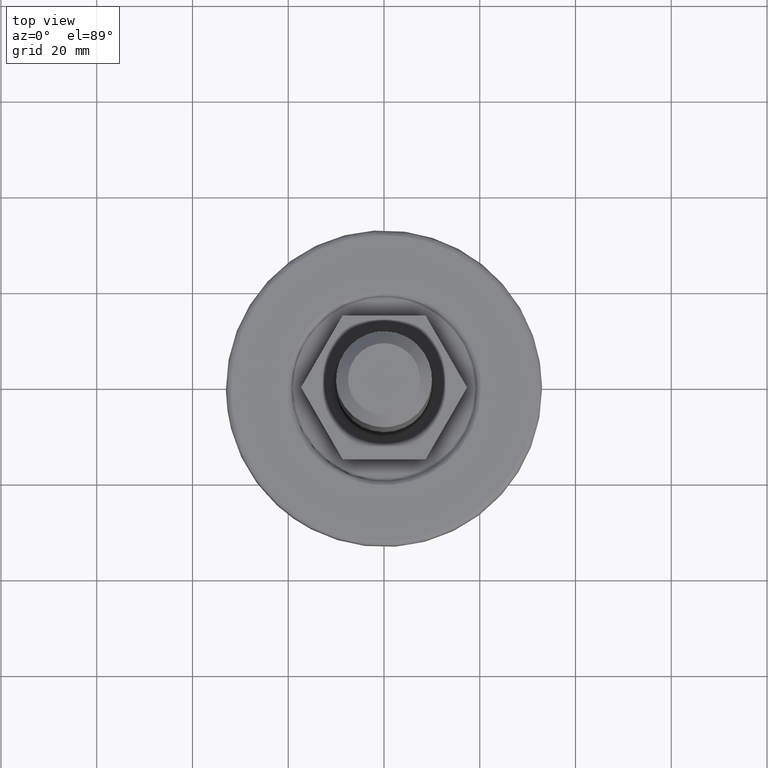
[diagram: clean part render]
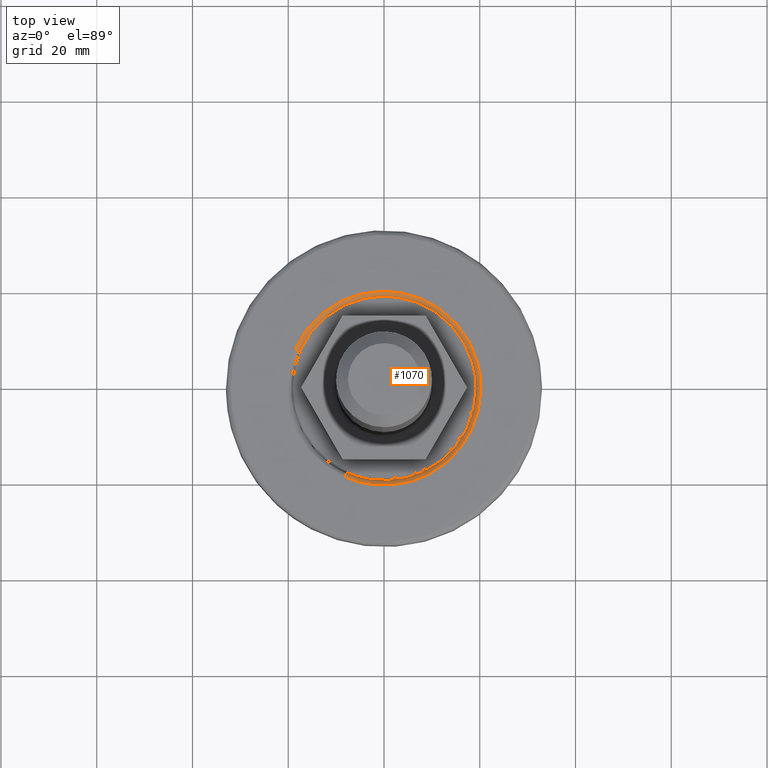
[diagram: same view with one face highlighted and labeled with its STEP entity id]
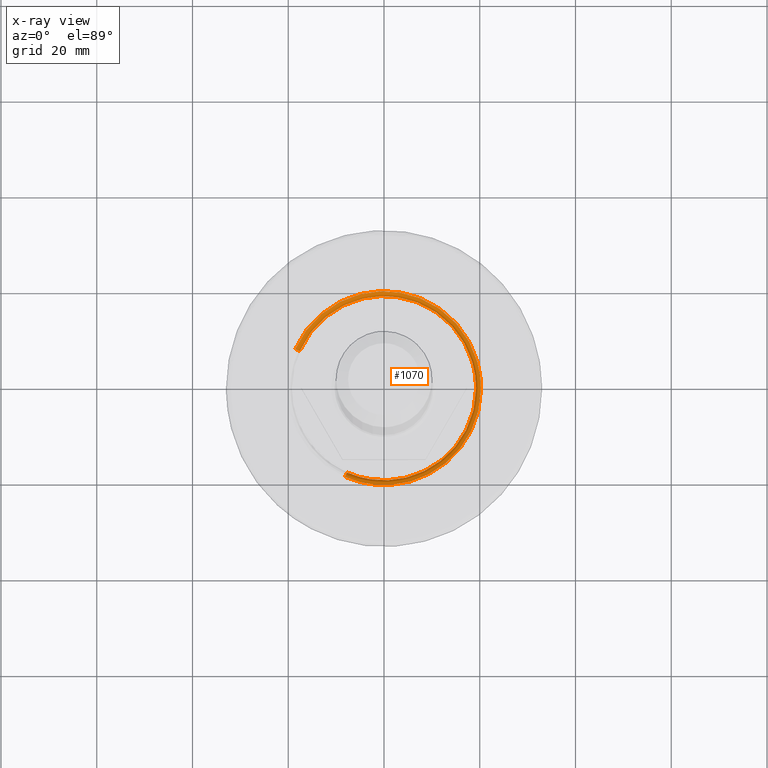
[diagram: x-ray of the same camera — body ghosted, the highlighted face saturated]
A machine part, top view. The second image highlights one B-rep face of the part: STEP entity #1070.
The next image is the same camera in x-ray: the body ghosted, the highlighted face saturated — about 0% of this face is hidden behind the body in this view.
In plain terms, the highlighted face is a freeform B-spline surface patch.
Its self-contained STEP definition (entity closure, byte-faithful):
#519=CARTESIAN_POINT('',(14.262485081460540,12.928419056524501,11.000000000000041));
#520=VERTEX_POINT('',#519);
#521=CARTESIAN_POINT('',(19.250000000000000,0.0,11.0));
#522=VERTEX_POINT('',#521);
#523=CARTESIAN_POINT('',(14.262485081460536,12.928419056524501,11.000000000000039));
#524=CARTESIAN_POINT('',(19.250000000000007,7.426249239146315,11.0));
#525=CARTESIAN_POINT('',(19.250000000000000,0.0,11.0));
#533=(BOUNDED_CURVE()B_SPLINE_CURVE(2,(#523,#524,#525),.UNSPECIFIED.,.F.,.U.)B_SPLINE_CURVE_WITH_KNOTS((3,3),(0.382398578021542,0.500000000000000),.UNSPECIFIED.)CURVE()GEOMETRIC_REPRESENTATION_ITEM()RATIONAL_B_SPLINE_CURVE((0.854066436008772,0.862221363918762,1.0))REPRESENTATION_ITEM(''));
#534=EDGE_CURVE('',#520,#522,#533,.T.);
#592=CARTESIAN_POINT('',(2.845321252948537,19.038556850964799,11.000000000001741));
#593=VERTEX_POINT('',#592);
#599=CARTESIAN_POINT('',(-17.618392572948419,7.755948887497642,10.999999999267910));
#600=VERTEX_POINT('',#599);
#601=CARTESIAN_POINT('',(-17.618392572948416,7.755948887497642,10.999999999267910));
#602=CARTESIAN_POINT('',(-12.558494368848676,19.250000000000000,11.0));
#603=CARTESIAN_POINT('',(0.0,19.250000000000000,11.0));
#604=CARTESIAN_POINT('',(1.430517068910706,19.250000000000000,11.0));
#605=CARTESIAN_POINT('',(2.845321252948537,19.038556850964810,11.000000000001741));
#613=(BOUNDED_CURVE()B_SPLINE_CURVE(2,(#601,#602,#603,#604,#605),.UNSPECIFIED.,.F.,.U.)B_SPLINE_CURVE_WITH_KNOTS((3,2,3),(0.068414990138719,0.250000000000000,0.275488882519368),.UNSPECIFIED.)CURVE()GEOMETRIC_REPRESENTATION_ITEM()RATIONAL_B_SPLINE_CURVE((0.883563120517967,0.787259927893827,1.0,0.970137916619777,0.946365042320051))REPRESENTATION_ITEM(''));
#614=EDGE_CURVE('',#600,#593,#613,.T.);
#631=CARTESIAN_POINT('',(-7.755948887495796,-17.618392572949229,10.999999999270869));
#632=VERTEX_POINT('',#631);
#646=CARTESIAN_POINT('',(19.250000000000000,0.0,11.0));
#647=CARTESIAN_POINT('',(19.250000000000000,-19.250000000000000,11.0));
#648=CARTESIAN_POINT('',(0.0,-19.250000000000000,11.0));
#649=CARTESIAN_POINT('',(-4.049593857097121,-19.250000000000007,11.000000000000007));
#650=CARTESIAN_POINT('',(-7.755948887495796,-17.618392572949229,10.999999999270871));
#658=(BOUNDED_CURVE()B_SPLINE_CURVE(2,(#646,#647,#648,#649,#650),.UNSPECIFIED.,.F.,.U.)B_SPLINE_CURVE_WITH_KNOTS((3,2,3),(0.500000000000000,0.750000000000000,0.818414990138687),.UNSPECIFIED.)CURVE()GEOMETRIC_REPRESENTATION_ITEM()RATIONAL_B_SPLINE_CURVE((1.0,0.707106781186547,1.0,0.919846853292758,0.883563120518001))REPRESENTATION_ITEM(''));
#659=EDGE_CURVE('',#522,#632,#658,.T.);
#682=CARTESIAN_POINT('',(2.845321252948537,19.038556850964802,11.000000000001743));
#683=CARTESIAN_POINT('',(9.645036160450902,18.022336268086075,11.0));
#684=CARTESIAN_POINT('',(14.262485081460536,12.928419056524501,11.000000000000039));
#692=(BOUNDED_CURVE()B_SPLINE_CURVE(2,(#682,#683,#684),.UNSPECIFIED.,.F.,.U.)B_SPLINE_CURVE_WITH_KNOTS((3,3),(0.275488882519368,0.382398578021542),.UNSPECIFIED.)CURVE()GEOMETRIC_REPRESENTATION_ITEM()RATIONAL_B_SPLINE_CURVE((0.946365042320051,0.846652912897981,0.854066436008772))REPRESENTATION_ITEM(''));
#693=EDGE_CURVE('',#593,#520,#692,.T.);
#955=CARTESIAN_POINT('',(-17.621113171416741,7.757146546272336,10.922952869758632));
#956=CARTESIAN_POINT('',(-9.863966625144405,25.378259717689083,10.922952869758632));
#957=CARTESIAN_POINT('',(7.757146546272336,17.621113171416741,10.922952869758632));
#958=CARTESIAN_POINT('',(25.378259717689083,9.863966625144409,10.922952869758632));
#959=CARTESIAN_POINT('',(17.621113171416741,-7.757146546272335,10.922952869758632));
#960=CARTESIAN_POINT('',(9.863966625144409,-25.378259717689083,10.922952869758632));
#961=CARTESIAN_POINT('',(-7.757146546272335,-17.621113171416741,10.922952869758632));
#962=CARTESIAN_POINT('',(-17.610788905346269,7.752601609518775,11.068926459581434));
#963=CARTESIAN_POINT('',(-9.858187295827484,25.363390514865038,11.068926459581437));
#964=CARTESIAN_POINT('',(7.752601609518775,17.610788905346269,11.068926459581434));
#965=CARTESIAN_POINT('',(25.363390514865038,9.858187295827488,11.068926459581437));
#966=CARTESIAN_POINT('',(17.610788905346269,-7.752601609518774,11.068926459581434));
#967=CARTESIAN_POINT('',(9.858187295827488,-25.363390514865038,11.068926459581437));
#968=CARTESIAN_POINT('',(-7.752601609518772,-17.610788905346269,11.068926459581434));
#969=CARTESIAN_POINT('',(-17.639197722193980,7.765107706798226,11.212007109922061));
#970=CARTESIAN_POINT('',(-9.874090015395749,25.404305428992199,11.212007109922055));
#971=CARTESIAN_POINT('',(7.765107706798226,17.639197722193980,11.212007109922061));
#972=CARTESIAN_POINT('',(25.404305428992199,9.874090015395753,11.212007109922055));
#973=CARTESIAN_POINT('',(17.639197722193980,-7.765107706798224,11.212007109922061));
#974=CARTESIAN_POINT('',(9.874090015395753,-25.404305428992199,11.212007109922055));
#975=CARTESIAN_POINT('',(-7.765107706798222,-17.639197722193980,11.212007109922061));
#976=CARTESIAN_POINT('',(-17.808045088247987,7.839437503655649,12.062404754878951));
#977=CARTESIAN_POINT('',(-9.968607584592338,25.647482591903636,12.062404754878949));
#978=CARTESIAN_POINT('',(7.839437503655649,17.808045088247987,12.062404754878951));
#979=CARTESIAN_POINT('',(25.647482591903636,9.968607584592341,12.062404754878949));
#980=CARTESIAN_POINT('',(17.808045088247987,-7.839437503655647,12.062404754878951));
#981=CARTESIAN_POINT('',(9.968607584592343,-25.647482591903636,12.062404754878949));
#982=CARTESIAN_POINT('',(-7.839437503655646,-17.808045088247987,12.062404754878951));
#983=CARTESIAN_POINT('',(-18.602228294940197,8.189051938281322,11.997187521098672));
#984=CARTESIAN_POINT('',(-10.413176356658868,26.791280233221507,11.997187521098677));
#985=CARTESIAN_POINT('',(8.189051938281322,18.602228294940197,11.997187521098672));
#986=CARTESIAN_POINT('',(26.791280233221507,10.413176356658870,11.997187521098677));
#987=CARTESIAN_POINT('',(18.602228294940197,-8.189051938281320,11.997187521098672));
#988=CARTESIAN_POINT('',(10.413176356658870,-26.791280233221507,11.997187521098677));
#989=CARTESIAN_POINT('',(-8.189051938281320,-18.602228294940197,11.997187521098672));
#997=(BOUNDED_SURFACE()B_SPLINE_SURFACE(2,2,((#955,#962,#969,#976,#983),(#956,#963,#970,#977,#984),(#957,#964,#971,#978,#985),(#958,#965,#972,#979,#986),(#959,#966,#973,#980,#987),(#960,#967,#974,#981,#988),(#961,#968,#975,#982,#989)),.UNSPECIFIED.,.F.,.F.,.U.)B_SPLINE_SURFACE_WITH_KNOTS((3,2,2,3),(3,2,3),(0.0,33.675474751904360,67.350949503808721,101.026424255713100),(0.0,0.322089300789889,1.818568889335008),.UNSPECIFIED.)GEOMETRIC_REPRESENTATION_ITEM()RATIONAL_B_SPLINE_SURFACE(((0.909306260920913,0.943516738576562,1.0,0.737569526192453,0.955937989351295),(0.642976623272562,0.667167084010502,0.707106781186548,0.521540413567232,0.675950234664134),(0.909306260920913,0.943516738576562,1.0,0.737569526192453,0.955937989351295),(0.642976623272562,0.667167084010502,0.707106781186548,0.521540413567232,0.675950234664134),(0.909306260920913,0.943516738576562,1.0,0.737569526192453,0.955937989351295),(0.642976623272562,0.667167084010502,0.707106781186548,0.521540413567232,0.675950234664134),(0.909306260920913,0.943516738576562,1.0,0.737569526192453,0.955937989351295)))REPRESENTATION_ITEM('')SURFACE());
#998=CARTESIAN_POINT('',(-18.533633736825561,8.158855319593272,12.0));
#999=VERTEX_POINT('',#998);
#1000=CARTESIAN_POINT('',(20.250000000000000,0.0,12.0));
#1001=VERTEX_POINT('',#1000);
#1002=CARTESIAN_POINT('',(-18.533633736825564,8.158855319593274,12.000000000000005));
#1003=CARTESIAN_POINT('',(-13.210883686410137,20.250000000000000,12.0));
#1004=CARTESIAN_POINT('',(0.0,20.250000000000000,12.0));
#1005=CARTESIAN_POINT('',(20.250000000000000,20.250000000000000,12.0));
#1006=CARTESIAN_POINT('',(20.250000000000000,0.0,12.0));
#1014=(BOUNDED_CURVE()B_SPLINE_CURVE(2,(#1002,#1003,#1004,#1005,#1006),.UNSPECIFIED.,.F.,.U.)B_SPLINE_CURVE_WITH_KNOTS((3,2,3),(0.068414990141974,0.250000000000000,0.500000000000000),.UNSPECIFIED.)CURVE()GEOMETRIC_REPRESENTATION_ITEM()RATIONAL_B_SPLINE_CURVE((0.883563120514515,0.787259927897641,1.0,0.707106781186548,1.0))REPRESENTATION_ITEM(''));
#1015=EDGE_CURVE('',#999,#1001,#1014,.T.);
#1016=ORIENTED_EDGE('',*,*,#1015,.F.);
#1017=CARTESIAN_POINT('',(-17.618392572948416,7.755948887497642,10.999999999267914));
#1018=CARTESIAN_POINT('',(-17.618392572808968,7.755948887424751,11.107222235550212));
#1019=CARTESIAN_POINT('',(-17.639197722193980,7.765107706798226,11.212007109922061));
#1020=CARTESIAN_POINT('',(-17.795654554091382,7.833982956698010,11.999999984743756));
#1021=CARTESIAN_POINT('',(-18.533633736825561,8.158855319593272,11.999999999999996));
#1029=(BOUNDED_CURVE()B_SPLINE_CURVE(2,(#1017,#1018,#1019,#1020,#1021),.UNSPECIFIED.,.F.,.U.)B_SPLINE_CURVE_WITH_KNOTS((3,2,3),(-2.293216331503403,-2.0,-0.269009523128850),.UNSPECIFIED.)CURVE()GEOMETRIC_REPRESENTATION_ITEM()RATIONAL_B_SPLINE_CURVE((0.928314442879901,0.957999623242679,1.0,0.752052514199472,0.933299765083803))REPRESENTATION_ITEM(''));
#1030=EDGE_CURVE('',#600,#999,#1029,.T.);
#1031=ORIENTED_EDGE('',*,*,#1030,.F.);
#1032=ORIENTED_EDGE('',*,*,#614,.T.);
#1033=ORIENTED_EDGE('',*,*,#693,.T.);
#1034=ORIENTED_EDGE('',*,*,#534,.T.);
#1035=ORIENTED_EDGE('',*,*,#659,.T.);
#1036=CARTESIAN_POINT('',(-8.158855319700241,-18.533633737084472,12.0));
#1037=VERTEX_POINT('',#1036);
#1038=CARTESIAN_POINT('',(-7.755948887495796,-17.618392572949226,10.999999999270875));
#1039=CARTESIAN_POINT('',(-7.755948887425006,-17.618392572809551,11.107222235553145));
#1040=CARTESIAN_POINT('',(-7.765107706798226,-17.639197722193980,11.212007109922061));
#1041=CARTESIAN_POINT('',(-7.833982956737486,-17.795654554181063,11.999999985195402));
#1042=CARTESIAN_POINT('',(-8.158855319700241,-18.533633737084468,12.000000000000002));
#1050=(BOUNDED_CURVE()B_SPLINE_CURVE(2,(#1038,#1039,#1040,#1041,#1042),.UNSPECIFIED.,.F.,.U.)B_SPLINE_CURVE_WITH_KNOTS((3,2,3),(-2.293216331495559,-2.0,-0.269009522382716),.UNSPECIFIED.)CURVE()GEOMETRIC_REPRESENTATION_ITEM()RATIONAL_B_SPLINE_CURVE((0.928314442881489,0.957999623243803,1.0,0.752052514092596,0.933299765240054))REPRESENTATION_ITEM(''));
#1051=EDGE_CURVE('',#632,#1037,#1050,.T.);
#1052=ORIENTED_EDGE('',*,*,#1051,.T.);
#1053=CARTESIAN_POINT('',(20.250000000000000,0.0,12.0));
#1054=CARTESIAN_POINT('',(20.250000000000000,-20.250000000000000,12.0));
#1055=CARTESIAN_POINT('',(0.0,-20.250000000000000,12.0));
#1056=CARTESIAN_POINT('',(-4.259962369369955,-20.250000000000004,11.999999999999995));
#1057=CARTESIAN_POINT('',(-8.158855319700241,-18.533633737084472,12.000000000000004));
#1065=(BOUNDED_CURVE()B_SPLINE_CURVE(2,(#1053,#1054,#1055,#1056,#1057),.UNSPECIFIED.,.F.,.U.)B_SPLINE_CURVE_WITH_KNOTS((3,2,3),(0.500000000000000,0.750000000000000,0.818414990141875),.UNSPECIFIED.)CURVE()GEOMETRIC_REPRESENTATION_ITEM()RATIONAL_B_SPLINE_CURVE((1.0,0.707106781186548,1.0,0.919846853289022,0.883563120514619))REPRESENTATION_ITEM(''));
#1066=EDGE_CURVE('',#1001,#1037,#1065,.T.);
#1067=ORIENTED_EDGE('',*,*,#1066,.F.);
#1068=EDGE_LOOP('',(#1016,#1031,#1032,#1033,#1034,#1035,#1052,#1067));
#1069=FACE_OUTER_BOUND('',#1068,.T.);
#1070=ADVANCED_FACE('',(#1069),#997,.T.);